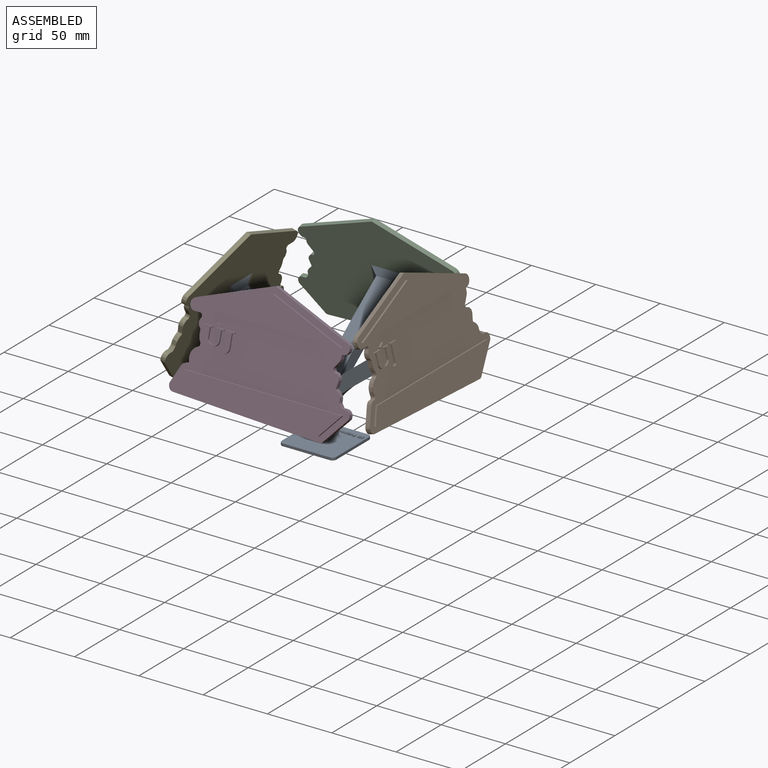
[diagram: assembled view]
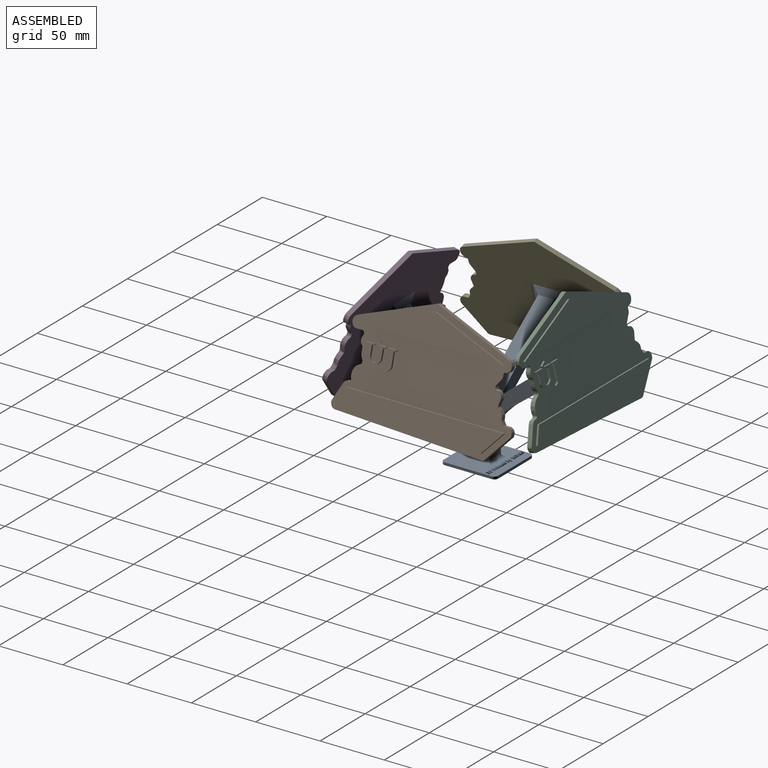
[diagram: assembled view, second angle]
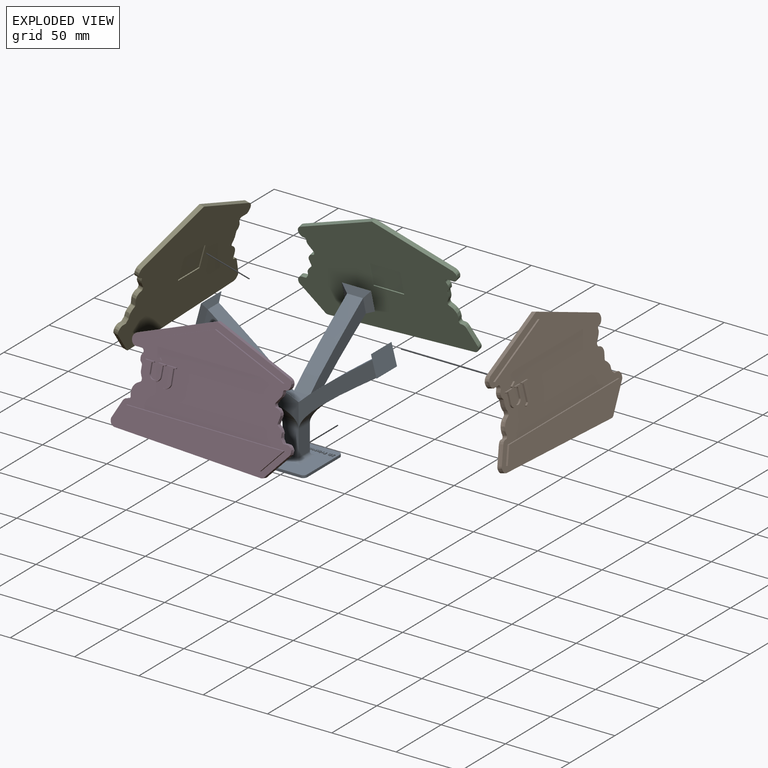
[diagram: exploded view]
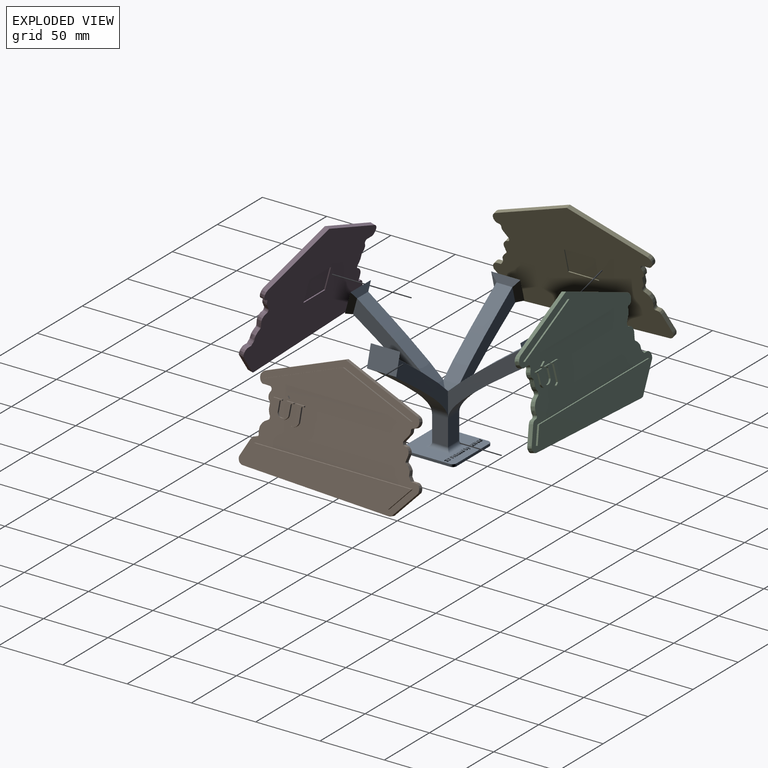
[diagram: exploded view, second angle]
ASSEMBLY  parts=5 mates=2
PART A: 343 faces, bbox 141.2x141.2x96.1 mm
  f0: extruded ~0.85x0.8mm, area 0.7mm2, adj f1,f26,f27,f28
  f1: plane 0.8x0.38mm, normal (0.83,0.56,0), area 0.4mm2, adj f0,f2,f27,f28
  f2: extruded ~0.8x0.29mm, area 0.3mm2, adj f1,f3,f27,f28
  f3: extruded ~0.8x0.26mm, area 0.2mm2, adj f2,f4,f27,f28
  f4: extruded ~0.8x0.37mm, area 0.4mm2, adj f3,f5,f27,f28
  f5: extruded ~0.8x0.27mm, area 0.3mm2, adj f4,f6,f27,f28
  f6: extruded ~0.8x0.44mm, area 0.4mm2, adj f5,f7,f27,f28
  f7: plane 0.8x0.2mm, normal (0,-1,0), area 0.2mm2, adj f6,f8,f27,f28
  f8: plane 0.8x0.42mm, normal (1,0,0), area 0.3mm2, adj f7,f9,f27,f28
  f9: plane 0.8x0.2mm, normal (0,1,0), area 0.2mm2, adj f8,f10,f27,f28
  f10: extruded ~0.8x0.48mm, area 0.4mm2, adj f9,f11,f27,f28
  f11: extruded ~0.8x0.26mm, area 0.3mm2, adj f10,f12,f27,f28
  f12: extruded ~0.8x0.3mm, area 0.3mm2, adj f11,f13,f27,f28
  f13: extruded ~0.8x0.4mm, area 0.3mm2, adj f12,f14,f27,f28
  f14: extruded ~0.8x0.36mm, area 0.3mm2, adj f13,f15,f27,f28
  f15: extruded ~0.8x0.33mm, area 0.3mm2, adj f14,f16,f27,f28
  f16: plane 0.8x0.47mm, normal (1,0,0), area 0.4mm2, adj f15,f17,f27,f28
  f17: extruded ~0.8x0.75mm, area 0.6mm2, adj f16,f18,f27,f28
  f18: extruded ~0.8x0.78mm, area 0.7mm2, adj f17,f19,f27,f28
  f19: extruded ~0.8x0.58mm, area 0.5mm2, adj f18,f20,f27,f28
  f20: extruded ~0.8x0.41mm, area 0.4mm2, adj f19,f21,f27,f28
  f21: extruded ~0.8x0.48mm, area 0.4mm2, adj f20,f22,f27,f28
  f22: plane 0.8x0.01mm, normal (-1,0,0), area 0mm2, adj f21,f23,f27,f28
  f23: extruded ~0.8x0.42mm, area 0.4mm2, adj f22,f24,f27,f28
  f24: extruded ~0.8x0.41mm, area 0.4mm2, adj f23,f25,f27,f28
  f25: extruded ~0.8x0.46mm, area 0.4mm2, adj f24,f26,f27,f28
  f26: extruded ~0.8x0.64mm, area 0.5mm2, adj f0,f25,f27,f28
  f27: plane 2.68x1.8mm, normal (0,0,1), area 2.6mm2, adj f0,f1,f2,f3,f4,f5,f6,f7
  f28: plane 42.43x42.43mm, normal (0,0,1), area 1405.2mm2, adj f0,f1,f2,f3,f4,f5,f6,f7
  f29: plane 0.82x0.8mm, normal (0,-1,0), area 0.7mm2, adj f28,f30,f40,f41
  f30: plane 2.6x0.8mm, normal (1,0,0), area 2.1mm2, adj f28,f29,f31,f41
  f31: plane 0.8x0.74mm, normal (0,1,0), area 0.6mm2, adj f28,f30,f32,f41
  f32: extruded ~1.06x0.8mm, area 0.9mm2, adj f28,f31,f33,f41
  f33: extruded ~0.98x0.8mm, area 0.9mm2, adj f28,f32,f34,f41
  f34: extruded ~0.94x0.8mm, area 0.8mm2, adj f28,f33,f40,f41
  f35: plane 1.69x0.8mm, normal (-1,0,0), area 1.4mm2, adj f36,f39,f41,f298
  f36: plane 0.8x0.29mm, normal (0,1,0), area 0.2mm2, adj f35,f37,f41,f298
  f37: extruded ~0.84x0.8mm, area 1mm2, adj f36,f38,f41,f298
  f38: extruded ~0.86x0.8mm, area 1.1mm2, adj f37,f39,f41,f298
  f39: plane 0.8x0.24mm, normal (0,-1,0), area 0.2mm2, adj f35,f38,f41,f298
  f40: extruded ~0.99x0.8mm, area 0.9mm2, adj f28,f29,f34,f41
  f41: plane 2.6x2.16mm, normal (0,0,1), area 3.4mm2, adj f29,f30,f31,f32,f33,f34,f35,f36
  f42: plane 1.19x0.8mm, normal (0,0,1), area 0.8mm2, adj f174,f175,f176,f177,f178,f179,f180,f181
  f43: extruded ~0.8x0.39mm, area 0.3mm2, adj f28,f44,f65,f66
  f44: plane 0.8x0.64mm, normal (-1,0,0), area 0.5mm2, adj f28,f43,f45,f66
  f45: plane 0.8x0.54mm, normal (0,-1,0), area 0.4mm2, adj f28,f44,f46,f66
  f46: plane 2.77x0.8mm, normal (1,0,0), area 2.2mm2, adj f28,f45,f47,f66
  f47: plane 0.8x0.41mm, normal (0,1,0), area 0.3mm2, adj f28,f46,f48,f66
  f48: plane 0.8x0.22mm, normal (-0.92,0.38,0), area 0.2mm2, adj f28,f47,f49,f66
  f49: plane 0.8x0.04mm, normal (0,1,0), area 0mm2, adj f28,f48,f50,f66
  f50: extruded ~0.8x0.55mm, area 0.5mm2, adj f28,f49,f51,f66
  f51: extruded ~0.8x0.56mm, area 0.5mm2, adj f28,f50,f52,f66
  f52: extruded ~0.8x0.76mm, area 0.6mm2, adj f28,f51,f53,f66
  f53: extruded ~0.8x0.75mm, area 0.6mm2, adj f28,f52,f54,f66
  f54: extruded ~0.8x0.55mm, area 0.5mm2, adj f28,f53,f55,f66
  f55: extruded ~0.8x0.56mm, area 0.5mm2, adj f28,f54,f65,f66
  f56: extruded ~0.8x0.45mm, area 0.4mm2, adj f57,f64,f66,f171
  f57: extruded ~0.8x0.27mm, area 0.3mm2, adj f56,f58,f66,f171
  f58: extruded ~0.8x0.3mm, area 0.3mm2, adj f57,f59,f66,f171
  f59: extruded ~0.8x0.46mm, area 0.4mm2, adj f58,f60,f66,f171
  f60: plane 0.8x0.06mm, normal (-1,0,0), area 0mm2, adj f59,f61,f66,f171
  f61: extruded ~0.8x0.41mm, area 0.3mm2, adj f60,f62,f66,f171
  f62: extruded ~0.8x0.29mm, area 0.3mm2, adj f61,f63,f66,f171
  f63: extruded ~0.8x0.27mm, area 0.3mm2, adj f62,f64,f66,f171
  f64: extruded ~0.8x0.44mm, area 0.4mm2, adj f56,f63,f66,f171
  f65: plane 0.8x0.02mm, normal (0,-1,0), area 0mm2, adj f28,f43,f55,f66
  f66: plane 2.81x1.86mm, normal (0,0,1), area 3.1mm2, adj f43,f44,f45,f46,f47,f48,f49,f50
  f67: plane 1.76x1.32mm, normal (0,0,1), area 1.9mm2, adj f79,f80,f81,f82,f83,f84
  f68: plane 36.43x2mm, normal (0,1,0), area 72.9mm2, adj f28,f72,f335,f338
  f69: plane 36.43x2mm, normal (-1,0,0), area 72.9mm2, adj f28,f72,f335,f336
  f70: plane 36.43x2mm, normal (0,-1,0), area 72.9mm2, adj f28,f72,f336,f337
  f71: plane 36.43x2mm, normal (1,0,0), area 72.9mm2, adj f28,f72,f337,f338
  f72: plane 42.43x42.43mm, normal (0,0,-1), area 1792.3mm2, adj f68,f69,f70,f71,f335,f336,f337,f338
  f73: plane 20x12.43mm, normal (0,1,0), area 248.5mm2, adj f74,f76,f304,f342
  f74: plane 20x12.43mm, normal (-1,0,0), area 248.5mm2, adj f73,f75,f322,f341
  f75: plane 20x12.43mm, normal (0,-1,0), area 248.5mm2, adj f74,f76,f331,f339
  f76: plane 20x12.43mm, normal (1,0,0), area 248.5mm2, adj f73,f75,f313,f340
  f77: plane 2.68x2.48mm, normal (0,0,1), area 3.5mm2, adj f78,f79,f80,f81,f82,f83,f84,f85
  f78: extruded ~0.92x0.8mm, area 0.8mm2, adj f28,f77,f85,f91
  f79: extruded ~0.8x0.5mm, area 0.5mm2, adj f67,f77,f80,f84
  f80: extruded ~0.8x0.66mm, area 0.6mm2, adj f67,f77,f79,f81
  f81: extruded ~0.8x0.66mm, area 0.6mm2, adj f67,f77,f80,f82
  f82: extruded ~0.8x0.49mm, area 0.5mm2, adj f67,f77,f81,f83
  f83: extruded ~0.88x0.8mm, area 1mm2, adj f67,f77,f82,f84
  f84: extruded ~0.88x0.8mm, area 1mm2, adj f67,f77,f79,f83
  f85: extruded ~0.99x0.8mm, area 0.9mm2, adj f28,f77,f78,f86
  f86: extruded ~0.99x0.8mm, area 0.9mm2, adj f28,f77,f85,f87
  f87: extruded ~0.92x0.8mm, area 0.8mm2, adj f28,f77,f86,f88
  f88: extruded ~0.92x0.8mm, area 0.8mm2, adj f28,f77,f87,f89
  f89: extruded ~1x0.8mm, area 0.9mm2, adj f28,f77,f88,f90
  f90: extruded ~0.99x0.8mm, area 0.9mm2, adj f28,f77,f89,f91
  f91: extruded ~0.92x0.8mm, area 0.8mm2, adj f28,f77,f78,f90
  f92: plane 2.68x1.98mm, normal (0,0,1), area 2.4mm2, adj f93,f94,f95,f96,f97,f98,f99,f100
  f93: extruded ~0.8x0.29mm, area 0.3mm2, adj f28,f92,f94,f107
  f94: extruded ~0.8x0.29mm, area 0.2mm2, adj f28,f92,f93,f95
  f95: extruded ~0.8x0.48mm, area 0.4mm2, adj f28,f92,f94,f96
  f96: extruded ~0.8x0.65mm, area 0.5mm2, adj f28,f92,f95,f97
  f97: extruded ~0.87x0.8mm, area 1mm2, adj f28,f92,f96,f98
  f98: extruded ~0.8x0.66mm, area 0.5mm2, adj f28,f92,f97,f99
  f99: plane 0.8x0.46mm, normal (-1,0,0), area 0.4mm2, adj f28,f92,f98,f100
  f100: extruded ~0.8x0.72mm, area 0.6mm2, adj f28,f92,f99,f101
  f101: extruded ~0.87x0.8mm, area 0.8mm2, adj f28,f92,f100,f102
  f102: extruded ~0.99x0.8mm, area 0.8mm2, adj f28,f92,f101,f103
  f103: extruded ~0.8x0.71mm, area 0.6mm2, adj f28,f92,f102,f104
  f104: extruded ~0.8x0.47mm, area 0.5mm2, adj f28,f92,f103,f105
  f105: extruded ~0.8x0.65mm, area 0.5mm2, adj f28,f92,f104,f106
  f106: extruded ~0.8x0.76mm, area 0.6mm2, adj f28,f92,f105,f107
  f107: plane 0.8x0.45mm, normal (-0.93,0.37,0), area 0.4mm2, adj f28,f92,f93,f106
  f108: plane 2.6x2.37mm, normal (0,0,1), area 2.6mm2, adj f109,f110,f111,f112,f113,f114,f115,f116
  f109: extruded ~0.8x0.57mm, area 0.5mm2, adj f28,f108,f110,f118
  f110: plane 1.55x0.8mm, normal (0.95,-0.3,0), area 1.3mm2, adj f28,f108,f109,f111
  f111: plane 0.8x0.56mm, normal (0,-1,0), area 0.4mm2, adj f28,f108,f110,f112
  f112: plane 2.6x0.88mm, normal (-0.95,0.32,0), area 2.2mm2, adj f28,f108,f111,f113
  f113: plane 0.8x0.6mm, normal (0,1,0), area 0.5mm2, adj f28,f108,f112,f114
  f114: plane 2.6x0.88mm, normal (0.95,0.32,0), area 2.2mm2, adj f28,f108,f113,f115
  f115: plane 0.8x0.56mm, normal (0,-1,0), area 0.4mm2, adj f28,f108,f114,f116
  f116: plane 1.55x0.8mm, normal (-0.95,-0.3,0), area 1.3mm2, adj f28,f108,f115,f117
  f117: extruded ~0.8x0.32mm, area 0.3mm2, adj f28,f108,f116,f118
  f118: extruded ~0.8x0.25mm, area 0.2mm2, adj f28,f108,f109,f117
  f119: plane 2.6x1.5mm, normal (0,0,1), area 2.7mm2, adj f120,f121,f122,f123,f124,f125,f126,f127
  f120: plane 0.95x0.8mm, normal (0,-1,0), area 0.8mm2, adj f28,f119,f121,f131
  f121: plane 0.8x0.46mm, normal (-1,0,0), area 0.4mm2, adj f28,f119,f120,f122
  f122: plane 1.5x0.8mm, normal (0,1,0), area 1.2mm2, adj f28,f119,f121,f123
  f123: plane 2.6x0.8mm, normal (1,0,0), area 2.1mm2, adj f28,f119,f122,f124
  f124: plane 1.5x0.8mm, normal (0,-1,0), area 1.2mm2, adj f28,f119,f123,f125
  f125: plane 0.8x0.45mm, normal (-1,0,0), area 0.4mm2, adj f28,f119,f124,f126
  f126: plane 0.95x0.8mm, normal (0,1,0), area 0.8mm2, adj f28,f119,f125,f127
  f127: plane 0.8x0.57mm, normal (-1,0,0), area 0.5mm2, adj f28,f119,f126,f128
  f128: plane 0.88x0.8mm, normal (0,-1,0), area 0.7mm2, adj f28,f119,f127,f129
  f129: plane 0.8x0.45mm, normal (-1,0,0), area 0.4mm2, adj f28,f119,f128,f130
  f130: plane 0.88x0.8mm, normal (0,1,0), area 0.7mm2, adj f28,f119,f129,f131
  f131: plane 0.8x0.67mm, normal (-1,0,0), area 0.5mm2, adj f28,f119,f120,f130
  f132: plane 0.7x0.69mm, normal (0,0,1), area 0.4mm2, adj f134,f147,f148,f149,f150,f151,f152
  f133: plane 2.6x2.08mm, normal (0,0,1), area 3.3mm2, adj f134,f135,f136,f137,f138,f139,f140,f141
  f134: plane 0.8x0.17mm, normal (0,1,0), area 0.1mm2, adj f132,f133,f147,f152
  f135: plane 1x0.8mm, normal (0.85,0.53,0), area 0.9mm2, adj f28,f133,f136,f146
  f136: plane 0.8x0.29mm, normal (0,1,0), area 0.2mm2, adj f28,f133,f135,f137
  f137: plane 1x0.8mm, normal (-1,0,0), area 0.8mm2, adj f28,f133,f136,f138
  f138: plane 0.8x0.55mm, normal (0,1,0), area 0.4mm2, adj f28,f133,f137,f139
  f139: plane 2.6x0.8mm, normal (1,0,0), area 2.1mm2, adj f28,f133,f138,f140
  f140: plane 0.8x0.76mm, normal (0,-1,0), area 0.6mm2, adj f28,f133,f139,f141
  f141: extruded ~0.8x0.79mm, area 0.7mm2, adj f28,f133,f140,f142
  f142: extruded ~0.8x0.59mm, area 0.5mm2, adj f28,f133,f141,f143
  f143: extruded ~0.8x0.41mm, area 0.3mm2, adj f28,f133,f142,f144
  f144: extruded ~0.8x0.36mm, area 0.4mm2, adj f28,f133,f143,f145
  f145: extruded ~1.13x0.8mm, area 1.1mm2, adj f28,f133,f144,f146
  f146: plane 0.8x0.61mm, normal (0,1,0), area 0.5mm2, adj f28,f133,f135,f145
  f147: plane 0.8x0.7mm, normal (-1,0,0), area 0.6mm2, adj f132,f133,f134,f148
  f148: plane 0.8x0.18mm, normal (0,-1,0), area 0.1mm2, adj f132,f133,f147,f149
  f149: extruded ~0.8x0.39mm, area 0.3mm2, adj f132,f133,f148,f150
  f150: extruded ~0.8x0.27mm, area 0.3mm2, adj f132,f133,f149,f151
  f151: extruded ~0.8x0.26mm, area 0.2mm2, adj f132,f133,f150,f152
  f152: extruded ~0.8x0.39mm, area 0.3mm2, adj f132,f133,f134,f151
  f153: plane 2.87x2.07mm, normal (0,0,1), area 2.6mm2, adj f154,f155,f156,f157,f158,f159,f160,f161
  f154: plane 0.8x0.1mm, normal (0.95,-0.31,0), area 0.1mm2, adj f28,f153,f155,f170
  f155: plane 1.98x0.8mm, normal (0.93,0.37,0), area 1.7mm2, adj f28,f153,f154,f156
  f156: plane 0.8x0.59mm, normal (0,-1,0), area 0.5mm2, adj f28,f153,f155,f157
  f157: plane 1.12x0.8mm, normal (-0.95,-0.32,0), area 0.9mm2, adj f28,f153,f156,f158
  f158: extruded ~0.8x0.35mm, area 0.3mm2, adj f28,f153,f157,f159
  f159: plane 0.8x0.01mm, normal (0,-1,0), area 0mm2, adj f28,f153,f158,f160
  f160: extruded ~0.8x0.35mm, area 0.3mm2, adj f28,f153,f159,f161
  f161: plane 1.12x0.8mm, normal (0.95,-0.31,0), area 0.9mm2, adj f28,f153,f160,f162
  f162: plane 0.8x0.58mm, normal (0,-1,0), area 0.5mm2, adj f28,f153,f161,f163
  f163: plane 2.24x0.84mm, normal (-0.94,0.35,0), area 1.9mm2, adj f28,f153,f162,f164
  f164: extruded ~0.8x0.47mm, area 0.5mm2, adj f28,f153,f163,f165
  f165: extruded ~0.8x0.5mm, area 0.4mm2, adj f28,f153,f164,f166
  f166: extruded ~0.8x0.28mm, area 0.2mm2, adj f28,f153,f165,f167
  f167: plane 0.8x0.43mm, normal (1,0,0), area 0.3mm2, adj f28,f153,f166,f168
  f168: extruded ~0.8x0.21mm, area 0.2mm2, adj f28,f153,f167,f169
  f169: extruded ~0.8x0.25mm, area 0.2mm2, adj f28,f153,f168,f170
  f170: extruded ~0.8x0.27mm, area 0.3mm2, adj f28,f153,f154,f169
  f171: plane 1.19x0.76mm, normal (0,0,1), area 0.8mm2, adj f56,f57,f58,f59,f60,f61,f62,f63
  f172: plane 2.81x1.86mm, normal (0,0,1), area 3mm2, adj f173,f174,f175,f176,f177,f178,f179,f180
  f173: plane 0.8x0.02mm, normal (0,1,0), area 0mm2, adj f28,f172,f183,f195
  f174: extruded ~0.8x0.44mm, area 0.4mm2, adj f42,f172,f175,f182
  f175: extruded ~0.8x0.29mm, area 0.3mm2, adj f42,f172,f174,f176
  f176: extruded ~0.8x0.31mm, area 0.3mm2, adj f42,f172,f175,f177
  f177: extruded ~0.8x0.41mm, area 0.3mm2, adj f42,f172,f176,f178
  f178: plane 0.8x0.06mm, normal (1,0,0), area 0mm2, adj f42,f172,f177,f179
  f179: extruded ~0.8x0.46mm, area 0.4mm2, adj f42,f172,f178,f180
  f180: extruded ~0.8x0.32mm, area 0.3mm2, adj f42,f172,f179,f181
  f181: extruded ~0.8x0.28mm, area 0.3mm2, adj f42,f172,f180,f182
  f182: extruded ~0.8x0.45mm, area 0.4mm2, adj f42,f172,f174,f181
  f183: extruded ~0.8x0.56mm, area 0.5mm2, adj f28,f172,f173,f184
  f184: extruded ~0.8x0.55mm, area 0.5mm2, adj f28,f172,f183,f185
  f185: extruded ~0.8x0.76mm, area 0.6mm2, adj f28,f172,f184,f186
  f186: extruded ~0.8x0.76mm, area 0.6mm2, adj f28,f172,f185,f187
  f187: extruded ~0.8x0.56mm, area 0.5mm2, adj f28,f172,f186,f188
  f188: extruded ~0.8x0.57mm, area 0.5mm2, adj f28,f172,f187,f189
  f189: plane 0.8x0.02mm, normal (0,-1,0), area 0mm2, adj f28,f172,f188,f190
  f190: extruded ~0.8x0.4mm, area 0.3mm2, adj f28,f172,f189,f191
  f191: plane 0.8x0.64mm, normal (1,0,0), area 0.5mm2, adj f28,f172,f190,f192
  f192: plane 0.8x0.54mm, normal (0,-1,0), area 0.4mm2, adj f28,f172,f191,f193
  f193: plane 2.77x0.8mm, normal (-1,0,0), area 2.2mm2, adj f28,f172,f192,f194
  f194: plane 0.8x0.42mm, normal (0,1,0), area 0.3mm2, adj f28,f172,f193,f195
  f195: plane 0.8x0.26mm, normal (0.93,0.38,0), area 0.2mm2, adj f28,f172,f173,f194
  f196: plane 0.76x0.42mm, normal (0,0,1), area 0.3mm2, adj f198,f214,f215,f216,f217
  f197: plane 2.06x1.83mm, normal (0,0,1), area 2.4mm2, adj f198,f199,f200,f201,f202,f203,f204,f205
  f198: extruded ~0.8x0.31mm, area 0.3mm2, adj f196,f197,f214,f217
  f199: extruded ~0.8x0.3mm, area 0.3mm2, adj f28,f197,f200,f213
  f200: extruded ~0.8x0.4mm, area 0.3mm2, adj f28,f197,f199,f201
  f201: extruded ~0.8x0.75mm, area 0.7mm2, adj f28,f197,f200,f202
  f202: extruded ~0.8x0.75mm, area 0.7mm2, adj f28,f197,f201,f203
  f203: extruded ~0.8x0.77mm, area 0.7mm2, adj f28,f197,f202,f204
  f204: extruded ~0.8x0.69mm, area 0.6mm2, adj f28,f197,f203,f205
  f205: extruded ~0.8x0.66mm, area 0.6mm2, adj f28,f197,f204,f206
  f206: extruded ~0.8x0.66mm, area 0.6mm2, adj f28,f197,f205,f207
  f207: plane 0.8x0.26mm, normal (-1,0,0), area 0.2mm2, adj f28,f197,f206,f208
  f208: plane 1.28x0.8mm, normal (0,1,0), area 1mm2, adj f28,f197,f207,f209
  f209: extruded ~0.8x0.36mm, area 0.3mm2, adj f28,f197,f208,f210
  f210: extruded ~0.8x0.36mm, area 0.3mm2, adj f28,f197,f209,f211
  f211: extruded ~0.8x0.34mm, area 0.3mm2, adj f28,f197,f210,f212
  f212: extruded ~0.8x0.33mm, area 0.3mm2, adj f28,f197,f211,f213
  f213: plane 0.8x0.42mm, normal (-1,0,0), area 0.3mm2, adj f28,f197,f199,f212
  f214: extruded ~0.8x0.27mm, area 0.2mm2, adj f196,f197,f198,f215
  f215: extruded ~0.8x0.27mm, area 0.2mm2, adj f196,f197,f214,f216
  f216: extruded ~0.8x0.31mm, area 0.3mm2, adj f196,f197,f215,f217
  f217: plane 0.8x0.76mm, normal (0,-1,0), area 0.6mm2, adj f196,f197,f198,f216
  f218: plane 2.45x1.38mm, normal (0,0,1), area 1.8mm2, adj f219,f220,f221,f222,f223,f224,f225,f226
  f219: extruded ~0.8x0.17mm, area 0.2mm2, adj f28,f218,f220,f236
  f220: extruded ~0.8x0.17mm, area 0.1mm2, adj f28,f218,f219,f221
  f221: extruded ~0.8x0.34mm, area 0.3mm2, adj f28,f218,f220,f222
  f222: plane 0.8x0.4mm, normal (-1,0,0), area 0.3mm2, adj f28,f218,f221,f223
  f223: extruded ~0.8x0.5mm, area 0.4mm2, adj f28,f218,f222,f224
  f224: extruded ~0.8x0.47mm, area 0.4mm2, adj f28,f218,f223,f225
  f225: extruded ~0.8x0.49mm, area 0.4mm2, adj f28,f218,f224,f226
  f226: plane 0.96x0.8mm, normal (1,0,0), area 0.8mm2, adj f28,f218,f225,f227
  f227: plane 0.8x0.26mm, normal (0,1,0), area 0.2mm2, adj f28,f218,f226,f228
  f228: plane 0.8x0.23mm, normal (1,0,0), area 0.2mm2, adj f28,f218,f227,f229
  f229: plane 0.8x0.3mm, normal (0.52,-0.85,0), area 0.3mm2, adj f28,f218,f228,f230
  f230: plane 0.8x0.42mm, normal (0.94,-0.35,0), area 0.4mm2, adj f28,f218,f229,f231
  f231: plane 0.8x0.35mm, normal (0,-1,0), area 0.3mm2, adj f28,f218,f230,f232
  f232: plane 0.8x0.42mm, normal (-1,0,0), area 0.3mm2, adj f28,f218,f231,f233
  f233: plane 0.8x0.56mm, normal (0,-1,0), area 0.4mm2, adj f28,f218,f232,f234
  f234: plane 0.8x0.41mm, normal (-1,0,0), area 0.3mm2, adj f28,f218,f233,f235
  f235: plane 0.8x0.56mm, normal (0,1,0), area 0.4mm2, adj f28,f218,f234,f236
  f236: plane 0.96x0.8mm, normal (-1,0,0), area 0.8mm2, adj f28,f218,f219,f235
  f237: plane 2.03x1.84mm, normal (0,0,1), area 2.4mm2, adj f238,f239,f240,f241,f242,f243,f244,f245
  f238: extruded ~0.8x0.54mm, area 0.5mm2, adj f28,f237,f239,f254
  f239: plane 1.3x0.8mm, normal (-1,0,0), area 1mm2, adj f28,f237,f238,f240
  f240: plane 0.8x0.54mm, normal (0,1,0), area 0.4mm2, adj f28,f237,f239,f241
  f241: plane 1.16x0.8mm, normal (1,0,0), area 0.9mm2, adj f28,f237,f240,f242
  f242: extruded ~0.8x0.32mm, area 0.3mm2, adj f28,f237,f241,f243
  f243: extruded ~0.8x0.24mm, area 0.2mm2, adj f28,f237,f242,f244
  f244: extruded ~0.8x0.33mm, area 0.3mm2, adj f28,f237,f243,f245
  f245: extruded ~0.8x0.5mm, area 0.4mm2, adj f28,f237,f244,f246
  f246: plane 0.94x0.8mm, normal (-1,0,0), area 0.7mm2, adj f28,f237,f245,f247
  f247: plane 0.8x0.54mm, normal (0,1,0), area 0.4mm2, adj f28,f237,f246,f248
  f248: plane 1.99x0.8mm, normal (1,0,0), area 1.6mm2, adj f28,f237,f247,f249
  f249: plane 0.8x0.41mm, normal (0,-1,0), area 0.3mm2, adj f28,f237,f248,f250
  f250: plane 0.8x0.25mm, normal (-0.96,-0.28,0), area 0.2mm2, adj f28,f237,f249,f251
  f251: plane 0.8x0.03mm, normal (0,-1,0), area 0mm2, adj f28,f237,f250,f252
  f252: extruded ~0.8x0.25mm, area 0.3mm2, adj f28,f237,f251,f253
  f253: extruded ~0.8x0.36mm, area 0.3mm2, adj f28,f237,f252,f254
  f254: extruded ~0.8x0.53mm, area 0.5mm2, adj f28,f237,f238,f253
  f255: plane 1.99x0.54mm, normal (0,0,1), area 1.1mm2, adj f256,f257,f258,f259
  f256: plane 0.8x0.54mm, normal (0,-1,0), area 0.4mm2, adj f28,f255,f257,f259
  f257: plane 1.99x0.8mm, normal (-1,0,0), area 1.6mm2, adj f28,f255,f256,f258
  f258: plane 0.8x0.54mm, normal (0,1,0), area 0.4mm2, adj f28,f255,f257,f259
  f259: plane 1.99x0.8mm, normal (1,0,0), area 1.6mm2, adj f28,f255,f256,f258
  f260: plane 0.59x0.53mm, normal (0,0,1), area 0.3mm2, adj f261,f262,f263,f264,f265
  f261: extruded ~0.8x0.22mm, area 0.2mm2, adj f28,f260,f262,f265
  f262: extruded ~0.8x0.3mm, area 0.4mm2, adj f28,f260,f261,f263
  f263: extruded ~0.8x0.3mm, area 0.4mm2, adj f28,f260,f262,f264
  f264: extruded ~0.8x0.3mm, area 0.4mm2, adj f28,f260,f263,f265
  f265: extruded ~0.8x0.2mm, area 0.2mm2, adj f28,f260,f261,f264
  f266: plane 2.03x1.29mm, normal (0,0,1), area 1.4mm2, adj f267,f268,f269,f270,f271,f272,f273,f274
  f267: extruded ~0.8x0.27mm, area 0.3mm2, adj f28,f266,f268,f279
  f268: extruded ~0.8x0.34mm, area 0.3mm2, adj f28,f266,f267,f269
  f269: extruded ~0.8x0.18mm, area 0.1mm2, adj f28,f266,f268,f270
  f270: plane 0.8x0.51mm, normal (-1,0.08,0), area 0.4mm2, adj f28,f266,f269,f271
  f271: extruded ~0.8x0.16mm, area 0.1mm2, adj f28,f266,f270,f272
  f272: extruded ~0.8x0.41mm, area 0.3mm2, adj f28,f266,f271,f273
  f273: extruded ~0.8x0.37mm, area 0.3mm2, adj f28,f266,f272,f274
  f274: plane 1.01x0.8mm, normal (-1,0,0), area 0.8mm2, adj f28,f266,f273,f275
  f275: plane 0.8x0.54mm, normal (0,1,0), area 0.4mm2, adj f28,f266,f274,f276
  f276: plane 1.99x0.8mm, normal (1,0,0), area 1.6mm2, adj f28,f266,f275,f277
  f277: plane 0.8x0.41mm, normal (0,-1,0), area 0.3mm2, adj f28,f266,f276,f278
  f278: plane 0.8x0.34mm, normal (-0.97,-0.23,0), area 0.3mm2, adj f28,f266,f277,f279
  f279: plane 0.8x0.03mm, normal (0,-1,0), area 0mm2, adj f28,f266,f267,f278
  f280: plane 0.77x0.69mm, normal (0,0,1), area 0.5mm2, adj f282,f292,f293,f294,f295,f296,f297
  f281: plane 2.6x1.8mm, normal (0,0,1), area 2.8mm2, adj f282,f283,f284,f285,f286,f287,f288,f289
  f282: plane 0.8x0.25mm, normal (0,1,0), area 0.2mm2, adj f280,f281,f292,f297
  f283: extruded ~0.8x0.72mm, area 0.6mm2, adj f28,f281,f284,f291
  f284: extruded ~0.8x0.61mm, area 0.5mm2, adj f28,f281,f283,f285
  f285: extruded ~0.8x0.64mm, area 0.6mm2, adj f28,f281,f284,f286
  f286: extruded ~0.8x0.75mm, area 0.6mm2, adj f28,f281,f285,f287
  f287: plane 0.8x0.24mm, normal (0,1,0), area 0.2mm2, adj f28,f281,f286,f288
  f288: plane 0.93x0.8mm, normal (-1,0,0), area 0.7mm2, adj f28,f281,f287,f289
  f289: plane 0.8x0.55mm, normal (0,1,0), area 0.4mm2, adj f28,f281,f288,f290
  f290: plane 2.6x0.8mm, normal (1,0,0), area 2.1mm2, adj f28,f281,f289,f291
  f291: plane 0.83x0.8mm, normal (0,-1,0), area 0.7mm2, adj f28,f281,f283,f290
  f292: plane 0.8x0.77mm, normal (-1,0,0), area 0.6mm2, adj f280,f281,f282,f293
  f293: plane 0.8x0.18mm, normal (0,-1,0), area 0.1mm2, adj f280,f281,f292,f294
  f294: extruded ~0.8x0.38mm, area 0.3mm2, adj f280,f281,f293,f295
  f295: extruded ~0.8x0.29mm, area 0.3mm2, adj f280,f281,f294,f296
  f296: extruded ~0.8x0.29mm, area 0.3mm2, adj f280,f281,f295,f297
  f297: extruded ~0.8x0.33mm, area 0.3mm2, adj f280,f281,f282,f296
  f298: plane 1.69x1.03mm, normal (0,0,1), area 1.5mm2, adj f35,f36,f37,f38,f39
  f299: plane 17.77x5.86mm, normal (-0.5,-0.84,-0.22), area 87.1mm2, adj f301,f302,f303,f305
  f300: plane 17.77x5.86mm, normal (0.5,-0.84,-0.22), area 87.1mm2, adj f301,f302,f303,f307
  f301: plane 22.79x16.06mm, normal (0,0.97,0.26), area 378.8mm2, adj f299,f300,f302,f303
  f302: plane 22.79x5.8mm, normal (0,-0.97,0.26), area 105.6mm2, adj f299,f300,f301,f306
  f303: plane 22.79x2.65mm, normal (0,0.54,-0.84), area 55.5mm2, adj f299,f300,f301,f304
  f304: bspline ~61.75x53.29mm, area 1028.4mm2, adj f73,f303,f305,f307
  f305: bspline ~74.17x65.26mm, area 816.2mm2, adj f299,f304,f306,f324,f325
  f306: bspline ~70.96x65.26mm, area 981.1mm2, adj f302,f305,f307,f314,f315,f324
  f307: bspline ~74.17x65.26mm, area 817.3mm2, adj f300,f304,f306,f314
  f308: plane 17.77x5.86mm, normal (-0.84,0.5,-0.22), area 87.1mm2, adj f310,f311,f312,f314
  f309: plane 17.77x5.86mm, normal (-0.84,-0.5,-0.22), area 87.1mm2, adj f310,f311,f312,f316
  f310: plane 22.79x16.06mm, normal (0.97,0,0.26), area 378.8mm2, adj f308,f309,f311,f312
  f311: plane 22.79x5.8mm, normal (-0.97,0,0.26), area 105.6mm2, adj f308,f309,f310,f315
  f312: plane 22.79x2.65mm, normal (0.54,0,-0.84), area 55.5mm2, adj f308,f309,f310,f313
  f313: bspline ~61.75x53.29mm, area 1028.4mm2, adj f76,f312,f314,f316
  f314: bspline ~74.17x65.26mm, area 816.2mm2, adj f306,f307,f308,f313,f315
  f315: bspline ~70.96x65.26mm, area 981.1mm2, adj f306,f311,f314,f316,f332,f333
  f316: bspline ~74.17x65.26mm, area 817.3mm2, adj f309,f313,f315,f332
  f317: plane 17.77x5.86mm, normal (0.84,-0.5,-0.22), area 87.1mm2, adj f319,f320,f321,f323
  f318: plane 17.77x5.86mm, normal (0.84,0.5,-0.22), area 87.1mm2, adj f319,f320,f321,f325
  f319: plane 22.79x16.06mm, normal (-0.97,0,0.26), area 378.8mm2, adj f317,f318,f320,f321
  f320: plane 22.79x5.8mm, normal (0.97,0,0.26), area 105.6mm2, adj f317,f318,f319,f324
  f321: plane 22.79x2.65mm, normal (-0.54,0,-0.84), area 55.5mm2, adj f317,f318,f319,f322
  f322: bspline ~61.75x53.29mm, area 1028.4mm2, adj f74,f321,f323,f325
  f323: bspline ~74.17x65.26mm, area 816.2mm2, adj f317,f322,f324,f333,f334
  f324: bspline ~70.96x65.26mm, area 981.1mm2, adj f305,f306,f320,f323,f325,f333
  f325: bspline ~74.17x65.26mm, area 817.3mm2, adj f305,f318,f322,f324
  f326: plane 17.77x5.86mm, normal (0.5,0.84,-0.22), area 87.1mm2, adj f328,f329,f330,f332
  f327: plane 17.77x5.86mm, normal (-0.5,0.84,-0.22), area 87.1mm2, adj f328,f329,f330,f334
  f328: plane 22.79x16.06mm, normal (0,-0.97,0.26), area 378.8mm2, adj f326,f327,f329,f330
  f329: plane 22.79x5.8mm, normal (0,0.97,0.26), area 105.6mm2, adj f326,f327,f328,f333
  f330: plane 22.79x2.65mm, normal (0,-0.54,-0.84), area 55.5mm2, adj f326,f327,f328,f331
  f331: bspline ~61.75x53.29mm, area 1028.4mm2, adj f75,f330,f332,f334
  f332: bspline ~74.17x65.26mm, area 816.2mm2, adj f315,f316,f326,f331,f333
  f333: bspline ~70.96x65.26mm, area 981.1mm2, adj f315,f323,f324,f329,f332,f334
  f334: bspline ~74.17x65.26mm, area 817.3mm2, adj f323,f327,f331,f333
  f335: cylinder r=3mm len=3mm, axis (0,0,1), area 9.4mm2, adj f28,f68,f69,f72
  f336: cylinder r=3mm len=3mm, axis (0,0,-1), area 9.4mm2, adj f28,f69,f70,f72
  f337: cylinder r=3mm len=3mm, axis (0,0,1), area 9.4mm2, adj f28,f70,f71,f72
  f338: cylinder r=3mm len=3mm, axis (0,0,-1), area 9.4mm2, adj f28,f68,f71,f72
  f339: cylinder r=3mm len=18.43mm, axis (-1,0,0), area 68.8mm2, adj f28,f75,f340,f341
  f340: cylinder r=3mm len=18.43mm, axis (0,-1,0), area 68.8mm2, adj f28,f76,f339,f342
  f341: cylinder r=3mm len=18.43mm, axis (0,1,0), area 68.8mm2, adj f28,f74,f339,f342
  f342: cylinder r=3mm len=18.43mm, axis (1,0,0), area 68.8mm2, adj f28,f73,f340,f341
PART B: 43 faces, bbox 137.9x90.8x5 mm
  f0: plane 137.94x90.84mm, normal (0,0,1), area 6012mm2, adj f1,f2,f3,f4,f5,f6,f7,f8
  f1: extruded ~3.6x2.79mm, area 12.3mm2, adj f0,f2,f9,f10
  f2: plane 18.27x16.31mm, normal (0.75,-0.67,0), area 88.2mm2, adj f0,f1,f3,f10
  f3: extruded ~48.51x17.41mm, area 213.8mm2, adj f0,f2,f4,f10
  f4: plane 59.11x22.35mm, normal (0.35,0.94,0), area 227.5mm2, adj f0,f3,f5,f10
  f5: plane 58.73x22mm, normal (-0.35,0.94,0), area 225.8mm2, adj f0,f4,f6,f10
  f6: extruded ~45.44x11.86mm, area 231.3mm2, adj f0,f5,f7,f10
  f7: plane 12.78x6.46mm, normal (-0.89,0.45,0), area 51.5mm2, adj f0,f6,f8,f10
  f8: extruded ~5.55x3.6mm, area 26.2mm2, adj f0,f7,f9,f10
  f9: plane 115.13x5.06mm, normal (-0.04,-1,0), area 414.9mm2, adj f0,f1,f8,f10
  f10: plane 137.94x90.84mm, normal (0,0,-1), area 8677.8mm2, adj f1,f2,f3,f4,f5,f6,f7,f8
  f11: plane 56.93x21.52mm, normal (0.35,0.94,0), area 87.6mm2, adj f0,f12,f13,f14
  f12: plane 57.45x21.52mm, normal (-0.35,0.94,0), area 88.3mm2, adj f0,f11,f13,f14
  f13: plane 114.38x1.44mm, normal (0,-1,0), area 164.7mm2, adj f0,f11,f12,f14
  f14: plane 114.38x21.52mm, normal (0,0,1), area 1230.7mm2, adj f11,f12,f13
  f15: plane 17.07x15.24mm, normal (0.75,-0.67,0), area 33mm2, adj f0,f16,f18,f19
  f16: plane 122.47x1.44mm, normal (0,1,0), area 176.4mm2, adj f0,f15,f17,f19
  f17: plane 12.09x6.11mm, normal (-0.89,0.45,0), area 19.5mm2, adj f0,f16,f18,f19
  f18: plane 113.34x4.98mm, normal (-0.04,-1,0), area 163.4mm2, adj f0,f15,f17,f19
  f19: plane 128.58x17.07mm, normal (0,0,1), area 1745.8mm2, adj f15,f16,f17,f18
  f20: plane 1.44x0.97mm, normal (0,-1,0), area 1.4mm2, adj f0,f21,f29,f30
  f21: extruded ~1.44x0.74mm, area 1.8mm2, adj f0,f20,f22,f30
  f22: plane 10.9x1.44mm, normal (-1,0,0), area 15.7mm2, adj f0,f21,f23,f30
  f23: extruded ~5.52x3.94mm, area 16.8mm2, adj f0,f22,f24,f30
  f24: plane 10.36x1.44mm, normal (1,0,0), area 14.9mm2, adj f0,f23,f25,f30
  f25: extruded ~1.44x0.91mm, area 1.9mm2, adj f0,f24,f26,f30
  f26: plane 1.44x0.94mm, normal (0,-1,0), area 1.4mm2, adj f0,f25,f27,f30
  f27: plane 1.44x0.83mm, normal (1,0,0), area 1.2mm2, adj f0,f26,f28,f30
  f28: plane 6.88x1.44mm, normal (0,1,0), area 9.9mm2, adj f0,f27,f29,f30
  f29: plane 1.44x0.89mm, normal (-1,0,0), area 1.3mm2, adj f0,f20,f28,f30
  f30: plane 15.89x7.41mm, normal (0,0,1), area 52.1mm2, adj f20,f21,f22,f23,f24,f25,f26,f27
  f31: plane 1.44x0.63mm, normal (-0.83,-0.56,0), area 1.1mm2, adj f0,f32,f34,f35
  f32: plane 4.77x1.44mm, normal (0.26,-0.97,0), area 7.1mm2, adj f0,f31,f33,f35
  f33: plane 1.66x1.44mm, normal (0.82,0.58,0), area 2.9mm2, adj f0,f32,f34,f35
  f34: plane 4.02x2.31mm, normal (-0.5,0.87,0), area 6.7mm2, adj f0,f31,f33,f35
  f35: plane 5.19x2.94mm, normal (0,0,1), area 6.5mm2, adj f31,f32,f33,f34
  f36: extruded ~15.61x13.1mm, area 98.6mm2, adj f0,f37
  f37: plane 15.97x13.3mm, normal (0,0,1), area 66.2mm2, adj f36
  f38: plane 18x0.8mm, normal (-1,0,0), area 14.4mm2, adj f10,f39,f41,f42
  f39: plane 24x0.8mm, normal (0,1,0), area 19.2mm2, adj f10,f38,f40,f42
  f40: plane 18x0.8mm, normal (1,0,0), area 14.4mm2, adj f10,f39,f41,f42
  f41: plane 24x0.8mm, normal (0,-1,0), area 19.2mm2, adj f10,f38,f40,f42
  f42: plane 24x18mm, normal (0,0,-1), area 432mm2, adj f38,f39,f40,f41
PART C: same geometry as B
PART D: same geometry as B
PART E: same geometry as B
PLACE A at identity fixed
PLACE B rot(axis=(0.52,0.52,0.68),111.8deg) t=(67.45,-0.36,88.68)mm
PLACE C rot(axis=(0,0.61,0.79),180deg) t=(0.36,67.45,88.68)mm
PLACE D rot(axis=(1,0,0),75deg) t=(-0.36,-67.68,87.83)mm
PLACE E rot(axis=(0.52,-0.52,-0.68),111.8deg) t=(-67.68,0.36,87.83)mm
MATE fastened E.f42 <-> A.f319  axis (0.97,0,-0.26) through (-68.45,0.36,88.03)mm
MATE fastened A.f328 <-> D.f42  axis (0,-0.97,0.26) through (-0.36,-68.45,88.03)mm
